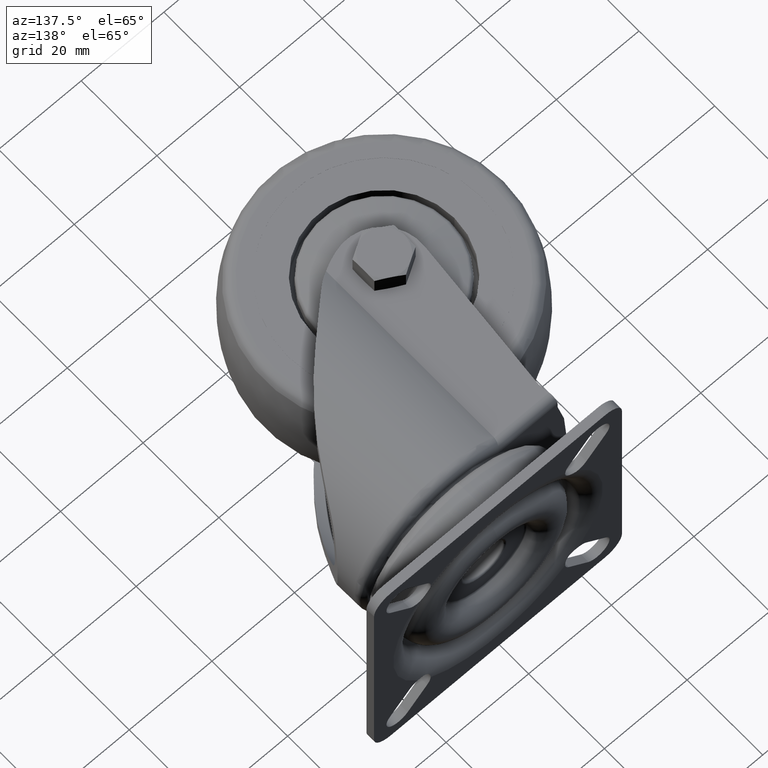
[diagram: clean part render]
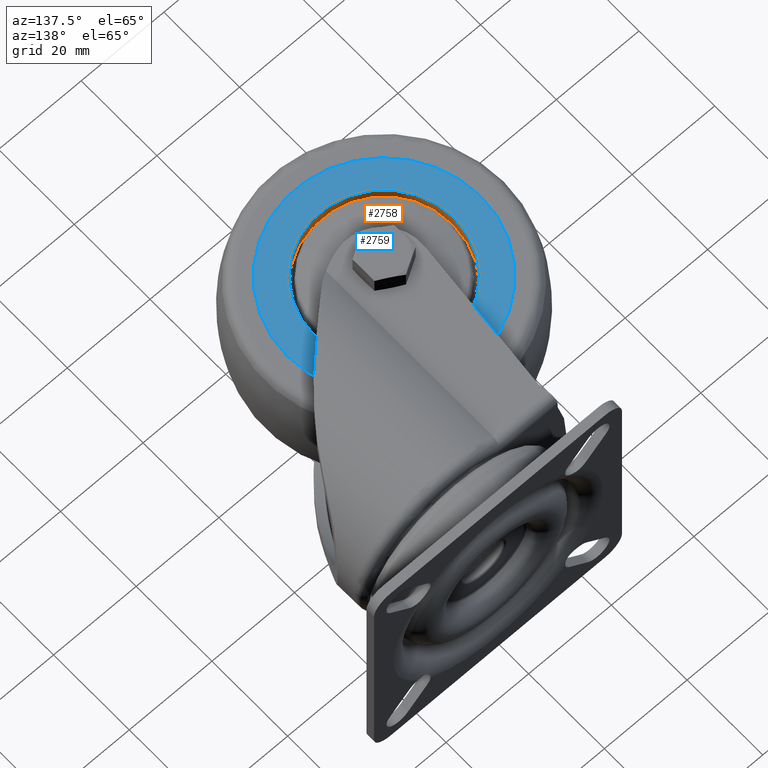
[diagram: same view with the hole feature highlighted: cylindrical wall and planar end face, labeled with their STEP entity ids]
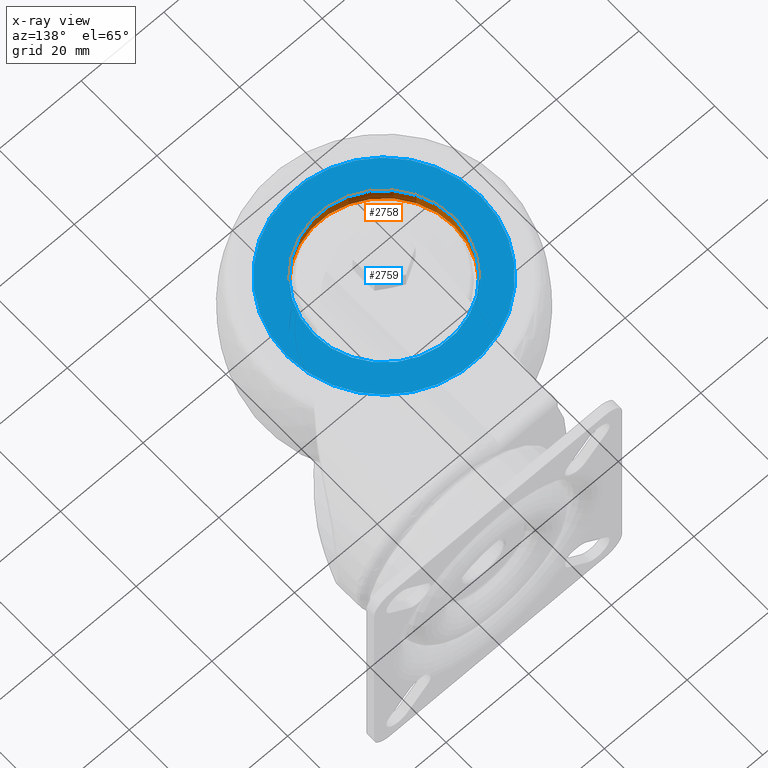
[diagram: x-ray of the same camera — body ghosted, the hole faces saturated]
A machine part, auxiliary view. The highlighted faces form one hole feature of diameter 34.0032 mm: the cylindrical wall (entity #2758, orange) and its adjacent planar end face (entity #2759, blue) — they share a circular edge in the B-rep.
The next image is the same camera in x-ray (body ghosted, the hole faces saturated) — the bore reads through the body.
Wall:
#176=LINE('',#4641,#307);
#307=VECTOR('',#3709,17.0016);
#428=CYLINDRICAL_SURFACE('',#3185,17.0016);
#621=FACE_OUTER_BOUND('',#809,.T.);
#809=EDGE_LOOP('',(#2051,#2052,#2053,#2054));
#1009=CIRCLE('',#3184,17.0016);
#1010=CIRCLE('',#3186,17.0016);
#1252=VERTEX_POINT('',#4636);
#1253=VERTEX_POINT('',#4640);
#1546=EDGE_CURVE('',#1252,#1252,#1009,.T.);
#1547=EDGE_CURVE('',#1252,#1253,#176,.T.);
#1548=EDGE_CURVE('',#1253,#1253,#1010,.T.);
#2051=ORIENTED_EDGE('',*,*,#1546,.F.);
#2052=ORIENTED_EDGE('',*,*,#1547,.T.);
#2053=ORIENTED_EDGE('',*,*,#1548,.T.);
#2054=ORIENTED_EDGE('',*,*,#1547,.F.);
#2758=ADVANCED_FACE('',(#621),#428,.F.);
#3184=AXIS2_PLACEMENT_3D('',#4638,#3705,#3706);
#3185=AXIS2_PLACEMENT_3D('',#4639,#3707,#3708);
#3186=AXIS2_PLACEMENT_3D('',#4642,#3710,#3711);
#3705=DIRECTION('center_axis',(1.,0.,0.));
#3706=DIRECTION('ref_axis',(0.,0.,-1.));
#3707=DIRECTION('center_axis',(1.,0.,0.));
#3708=DIRECTION('ref_axis',(0.,0.,-1.));
#3709=DIRECTION('',(1.,0.,0.));
#3710=DIRECTION('center_axis',(1.,0.,0.));
#3711=DIRECTION('ref_axis',(0.,0.,-1.));
#4636=CARTESIAN_POINT('',(22.4704618061407,-2.08209550203836E-15,17.0016));
#4638=CARTESIAN_POINT('Origin',(22.4704618061407,0.,0.));
#4639=CARTESIAN_POINT('Origin',(28.,0.,0.));
#4640=CARTESIAN_POINT('',(26.,-2.08209550203836E-15,17.0016));
#4641=CARTESIAN_POINT('',(28.,-2.08209550203836E-15,17.0016));
#4642=CARTESIAN_POINT('Origin',(26.,0.,0.));
End face:
#482=FACE_BOUND('',#811,.T.);
#522=PLANE('',#3187);
#622=FACE_OUTER_BOUND('',#810,.T.);
#810=EDGE_LOOP('',(#2055));
#811=EDGE_LOOP('',(#2056));
#1010=CIRCLE('',#3186,17.0016);
#1011=CIRCLE('',#3188,23.3515);
#1253=VERTEX_POINT('',#4640);
#1254=VERTEX_POINT('',#4644);
#1548=EDGE_CURVE('',#1253,#1253,#1010,.T.);
#1549=EDGE_CURVE('',#1254,#1254,#1011,.T.);
#2055=ORIENTED_EDGE('',*,*,#1549,.T.);
#2056=ORIENTED_EDGE('',*,*,#1548,.F.);
#2759=ADVANCED_FACE('',(#622,#482),#522,.T.);
#3186=AXIS2_PLACEMENT_3D('',#4642,#3710,#3711);
#3187=AXIS2_PLACEMENT_3D('',#4643,#3712,#3713);
#3188=AXIS2_PLACEMENT_3D('',#4645,#3714,#3715);
#3710=DIRECTION('center_axis',(1.,0.,0.));
#3711=DIRECTION('ref_axis',(0.,0.,-1.));
#3712=DIRECTION('center_axis',(1.,0.,0.));
#3713=DIRECTION('ref_axis',(0.,0.,-1.));
#3714=DIRECTION('center_axis',(1.,0.,0.));
#3715=DIRECTION('ref_axis',(0.,0.,-1.));
#4640=CARTESIAN_POINT('',(26.,-2.08209550203836E-15,17.0016));
#4642=CARTESIAN_POINT('Origin',(26.,0.,0.));
#4643=CARTESIAN_POINT('Origin',(26.,17.0016,0.));
#4644=CARTESIAN_POINT('',(26.,-2.85973397302894E-15,23.3515));
#4645=CARTESIAN_POINT('Origin',(26.,0.,0.));